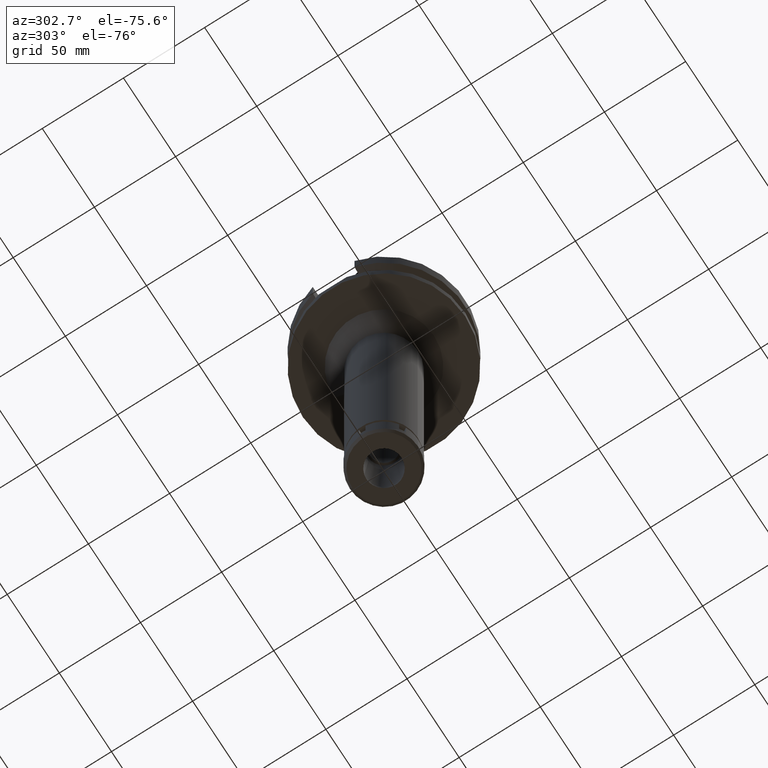
[diagram: clean part render]
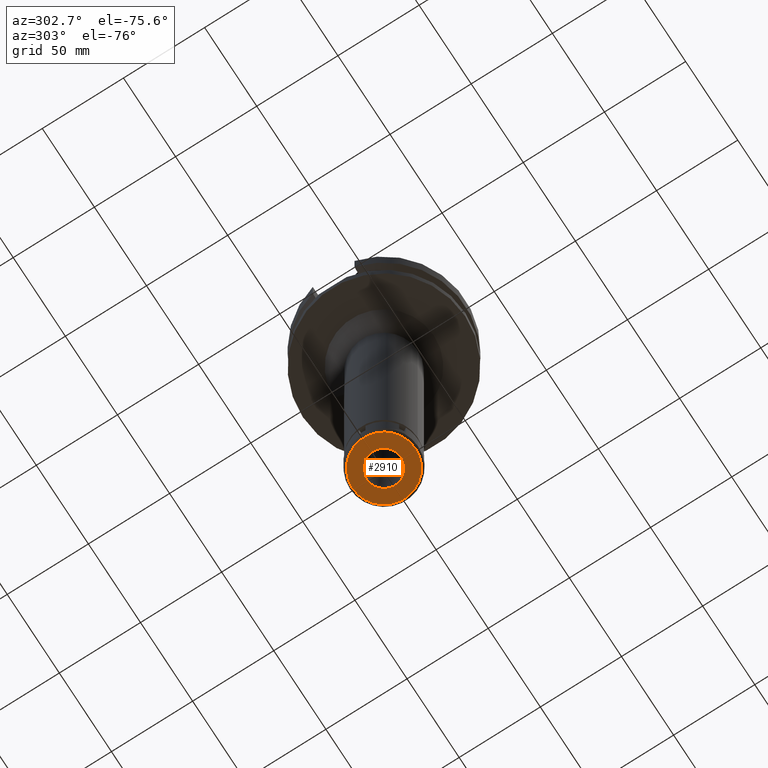
[diagram: same view with one face highlighted and labeled with its STEP entity id]
A machine part, auxiliary view. The second image highlights one B-rep face of the part: STEP entity #2910.
In plain terms, the highlighted planar face has unit normal (0, 0, -1).
Its self-contained STEP definition (entity closure, byte-faithful):
#33 = CARTESIAN_POINT ( 'NONE',  ( 0.0000000000000000000, -19.50000000000000000, -16.00000000000000000 ) ) ;
#36 = DIRECTION ( 'NONE',  ( 0.0000000000000000000, 0.0000000000000000000, 1.000000000000000000 ) ) ;
#89 = CARTESIAN_POINT ( 'NONE',  ( 0.0000000000000000000, 0.0000000000000000000, -16.00000000000000000 ) ) ;
#393 = AXIS2_PLACEMENT_3D ( 'NONE', #89, #680, #1238 ) ;
#415 = AXIS2_PLACEMENT_3D ( 'NONE', #2244, #36, #840 ) ;
#459 = EDGE_CURVE ( 'NONE', #2840, #3346, #1855, .T. ) ;
#533 = CARTESIAN_POINT ( 'NONE',  ( 0.0000000000000000000, 0.0000000000000000000, -16.00000000000000000 ) ) ;
#540 = CARTESIAN_POINT ( 'NONE',  ( 0.0000000000000000000, 0.0000000000000000000, -16.00000000000000000 ) ) ;
#680 = DIRECTION ( 'NONE',  ( 0.0000000000000000000, 0.0000000000000000000, -1.000000000000000000 ) ) ;
#840 = DIRECTION ( 'NONE',  ( 0.0000000000000000000, 1.000000000000000000, 0.0000000000000000000 ) ) ;
#847 = CIRCLE ( 'NONE', #3278, 10.75000000000000000 ) ;
#963 = EDGE_CURVE ( 'NONE', #2980, #2354, #1148, .T. ) ;
#1147 = EDGE_CURVE ( 'NONE', #2354, #2980, #847, .T. ) ;
#1148 = CIRCLE ( 'NONE', #393, 10.75000000000000000 ) ;
#1173 = CIRCLE ( 'NONE', #415, 19.50000000000000000 ) ;
#1238 = DIRECTION ( 'NONE',  ( 0.0000000000000000000, -1.000000000000000000, 0.0000000000000000000 ) ) ;
#1548 = DIRECTION ( 'NONE',  ( 0.0000000000000000000, 1.000000000000000000, 0.0000000000000000000 ) ) ;
#1658 = FACE_OUTER_BOUND ( 'NONE', #2951, .T. ) ;
#1725 = EDGE_LOOP ( 'NONE', ( #2456, #2378 ) ) ;
#1816 = DIRECTION ( 'NONE',  ( 0.0000000000000000000, 0.0000000000000000000, -1.000000000000000000 ) ) ;
#1855 = CIRCLE ( 'NONE', #2952, 19.50000000000000000 ) ;
#1925 = CARTESIAN_POINT ( 'NONE',  ( 0.0000000000000000000, 10.75000000000000000, -16.00000000000000000 ) ) ;
#2055 = CARTESIAN_POINT ( 'NONE',  ( 0.0000000000000000000, 0.0000000000000000000, -16.00000000000000000 ) ) ;
#2155 = ORIENTED_EDGE ( 'NONE', *, *, #3350, .F. ) ;
#2229 = CARTESIAN_POINT ( 'NONE',  ( 0.0000000000000000000, 19.50000000000000000, -16.00000000000000000 ) ) ;
#2237 = DIRECTION ( 'NONE',  ( 0.0000000000000000000, 0.0000000000000000000, 1.000000000000000000 ) ) ;
#2244 = CARTESIAN_POINT ( 'NONE',  ( 0.0000000000000000000, 0.0000000000000000000, -16.00000000000000000 ) ) ;
#2354 = VERTEX_POINT ( 'NONE', #1925 ) ;
#2378 = ORIENTED_EDGE ( 'NONE', *, *, #963, .F. ) ;
#2456 = ORIENTED_EDGE ( 'NONE', *, *, #1147, .F. ) ;
#2553 = ORIENTED_EDGE ( 'NONE', *, *, #459, .F. ) ;
#2609 = AXIS2_PLACEMENT_3D ( 'NONE', #540, #3343, #3049 ) ;
#2840 = VERTEX_POINT ( 'NONE', #33 ) ;
#2874 = CARTESIAN_POINT ( 'NONE',  ( 0.0000000000000000000, -10.75000000000000000, -16.00000000000000000 ) ) ;
#2910 = ADVANCED_FACE ( 'NONE', ( #1658, #3023 ), #3324, .T. ) ;
#2951 = EDGE_LOOP ( 'NONE', ( #2155, #2553 ) ) ;
#2952 = AXIS2_PLACEMENT_3D ( 'NONE', #533, #2237, #3336 ) ;
#2980 = VERTEX_POINT ( 'NONE', #2874 ) ;
#3023 = FACE_BOUND ( 'NONE', #1725, .T. ) ;
#3049 = DIRECTION ( 'NONE',  ( 0.0000000000000000000, -1.000000000000000000, 0.0000000000000000000 ) ) ;
#3278 = AXIS2_PLACEMENT_3D ( 'NONE', #2055, #1816, #1548 ) ;
#3324 = PLANE ( 'NONE',  #2609 ) ;
#3336 = DIRECTION ( 'NONE',  ( 0.0000000000000000000, -1.000000000000000000, 0.0000000000000000000 ) ) ;
#3343 = DIRECTION ( 'NONE',  ( 0.0000000000000000000, 0.0000000000000000000, -1.000000000000000000 ) ) ;
#3346 = VERTEX_POINT ( 'NONE', #2229 ) ;
#3350 = EDGE_CURVE ( 'NONE', #3346, #2840, #1173, .T. ) ;